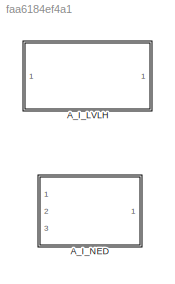
MODEL slx_faa6184ef4a1
KIND library
CONFIG AbsTol = auto
CONFIG EnableMultiTasking = off
CONFIG FixedStep = auto
CONFIG MaxStep = auto
CONFIG MinStep = auto
CONFIG RelTol = 1e-3
CONFIG SampleTimeConstraint = Unconstrained
CONFIG SolverName = VariableStepAuto
CONFIG StartTime = 0.0
CONFIG StopTime = 10.0
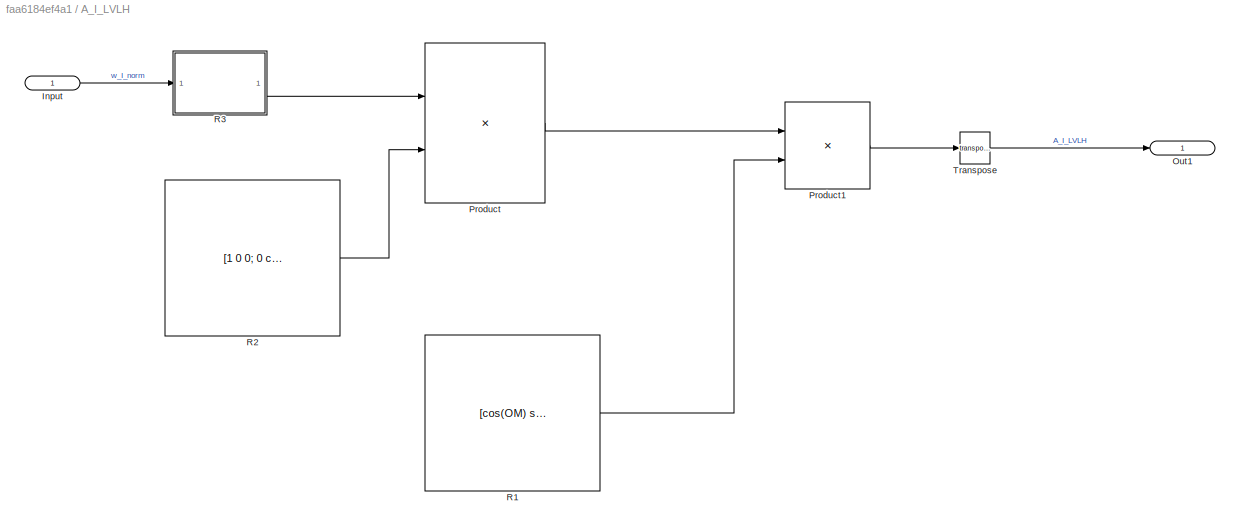
BLOCK [SubSystem] A_I_LVLH
  Ports = [1, 1]
  RequestExecContextInheritance = off
BLOCK [Inport] A_I_LVLH/Input
  IconDisplay = Signal name
BLOCK [Outport] A_I_LVLH/Out1
  IconDisplay = Signal name
BLOCK [Product] A_I_LVLH/Product
  Multiplication = Matrix(*)
  Ports = [2, 1]
BLOCK [Product] A_I_LVLH/Product1
  Multiplication = Matrix(*)
  Ports = [2, 1]
BLOCK [Constant] A_I_LVLH/R1
  Value = [cos(OM)  sin(OM) 0; -sin(OM) cos(OM) 0; 0 0 1]
BLOCK [Constant] A_I_LVLH/R2
  Value = [1 0 0; 0 cos(i) sin(i); 0 -sin(i) cos(i)]
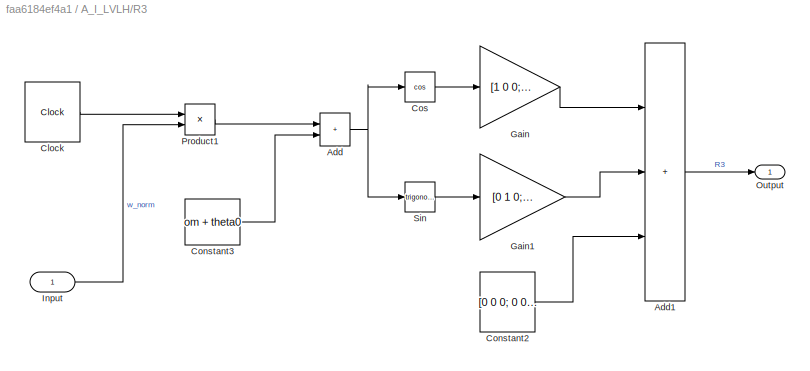
BLOCK [SubSystem] A_I_LVLH/R3
  Ports = [1, 1]
  RequestExecContextInheritance = off
BLOCK [Sum] A_I_LVLH/R3/Add
  IconShape = rectangular
  Ports = [2, 1]
BLOCK [Sum] A_I_LVLH/R3/Add1
  IconShape = rectangular
  Inputs = +++
  Ports = [3, 1]
BLOCK [Clock] A_I_LVLH/R3/Clock
BLOCK [Constant] A_I_LVLH/R3/Constant2
  Value = [0 0 0; 0 0 0; 0 0 1]
BLOCK [Constant] A_I_LVLH/R3/Constant3
  Value = om + theta0
BLOCK [Trigonometry] A_I_LVLH/R3/Cos
  Operator = cos
  Ports = [1, 1]
BLOCK [Gain] A_I_LVLH/R3/Gain
  Gain = [1 0 0; 0 1 0; 0 0 0]
BLOCK [Gain] A_I_LVLH/R3/Gain1
  Gain = [0 1 0; -1 0 0; 0 0 0]
BLOCK [Inport] A_I_LVLH/R3/Input
  IconDisplay = Signal name
BLOCK [Outport] A_I_LVLH/R3/Output
  IconDisplay = Signal name
BLOCK [Product] A_I_LVLH/R3/Product1
  Ports = [2, 1]
BLOCK [Trigonometry] A_I_LVLH/R3/Sin
  Ports = [1, 1]
BLOCK [Math] A_I_LVLH/Transpose
  Operator = transpose
  Ports = [1, 1]
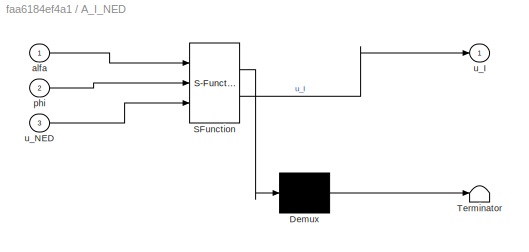
BLOCK [SubSystem] A_I_NED
  ErrorFcn = Stateflow.Translate.translate
  PermitHierarchicalResolution = ExplicitOnly
  Ports = [3, 1]
  RequestExecContextInheritance = off
  SFBlockType = MATLAB Function
  TreatAsAtomicUnit = on
BLOCK [Demux] A_I_NED/ Demux 
  Outputs = 1
  Ports = [1, 1]
BLOCK [S-Function] A_I_NED/ SFunction 
  EnableBusSupport = off
  FunctionName = sf_sfun
  PortCounts = [3 2]
  Ports = [3, 2]
  SFcnIsStateOwnerBlock = off
  SFunctionDeploymentMode = off
  Tag = Stateflow S-Function 2
BLOCK [Terminator] A_I_NED/ Terminator 
BLOCK [Inport] A_I_NED/alfa
BLOCK [Inport] A_I_NED/phi
  Port = 2
BLOCK [Outport] A_I_NED/u_I
BLOCK [Inport] A_I_NED/u_NED
  Port = 3
LINE A_I_LVLH/Input:1 -> A_I_LVLH/R3:1
LINE A_I_LVLH/Product1:1 -> A_I_LVLH/Transpose:1
LINE A_I_LVLH/Product:1 -> A_I_LVLH/Product1:1
LINE A_I_LVLH/R1:1 -> A_I_LVLH/Product1:2
LINE A_I_LVLH/R2:1 -> A_I_LVLH/Product:2
LINE A_I_LVLH/R3/Add1:1 -> A_I_LVLH/R3/Output:1
NET A_I_LVLH/R3/Add:1 -> A_I_LVLH/R3/Cos:1, A_I_LVLH/R3/Sin:1
LINE A_I_LVLH/R3/Clock:1 -> A_I_LVLH/R3/Product1:1
LINE A_I_LVLH/R3/Constant2:1 -> A_I_LVLH/R3/Add1:3
LINE A_I_LVLH/R3/Constant3:1 -> A_I_LVLH/R3/Add:2
LINE A_I_LVLH/R3/Cos:1 -> A_I_LVLH/R3/Gain:1
LINE A_I_LVLH/R3/Gain1:1 -> A_I_LVLH/R3/Add1:2
LINE A_I_LVLH/R3/Gain:1 -> A_I_LVLH/R3/Add1:1
LINE A_I_LVLH/R3/Input:1 -> A_I_LVLH/R3/Product1:2
LINE A_I_LVLH/R3/Product1:1 -> A_I_LVLH/R3/Add:1
LINE A_I_LVLH/R3/Sin:1 -> A_I_LVLH/R3/Gain1:1
LINE A_I_LVLH/R3:1 -> A_I_LVLH/Product:1
LINE A_I_LVLH/Transpose:1 -> A_I_LVLH/Out1:1
note: NET lines group one-source signal fan-out (src -> all destinations, sorted); 1:1 wires keep LINE
CHART A_I_NED states=1 transitions=1
  STATE_LABEL 'eML_blk_kernel()'
  STATE_LABEL "SCRIPT:\nfunction u_I = fcn(alfa,phi,u_NED)\nAr = [cos(alfa), sin(alfa) 0; -sin(alfa) cos(alfa) 0; 0 0 1]*[cos(phi+pi/2) 0 sin(phi+pi/2); 0 1 0; -sin(phi+pi/2) 0 cos(phi+pi/2)];\nu_I = Ar'*u_NED;\n"
CHART  states=0 transitions=0
